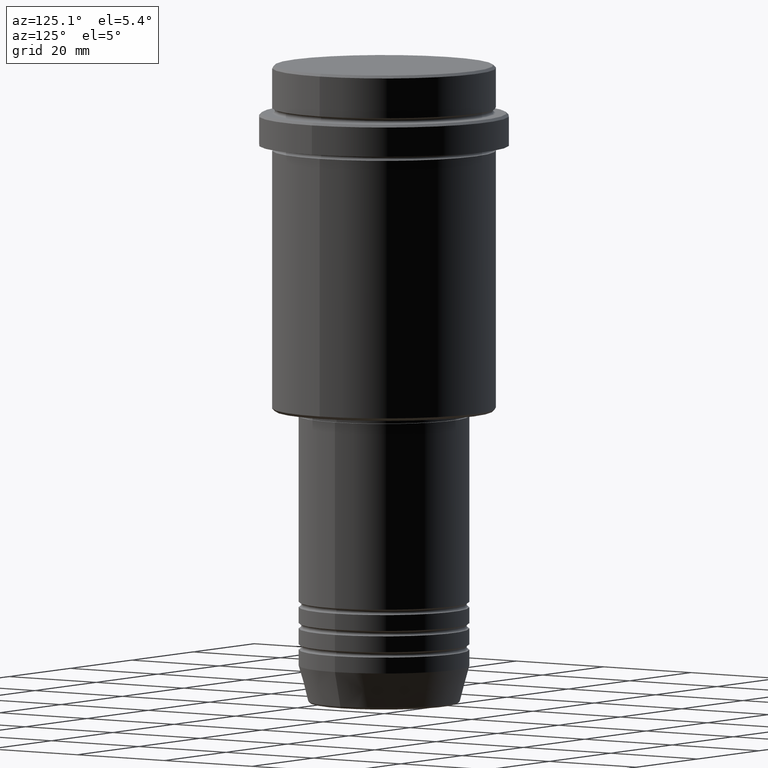
[diagram: clean part render]
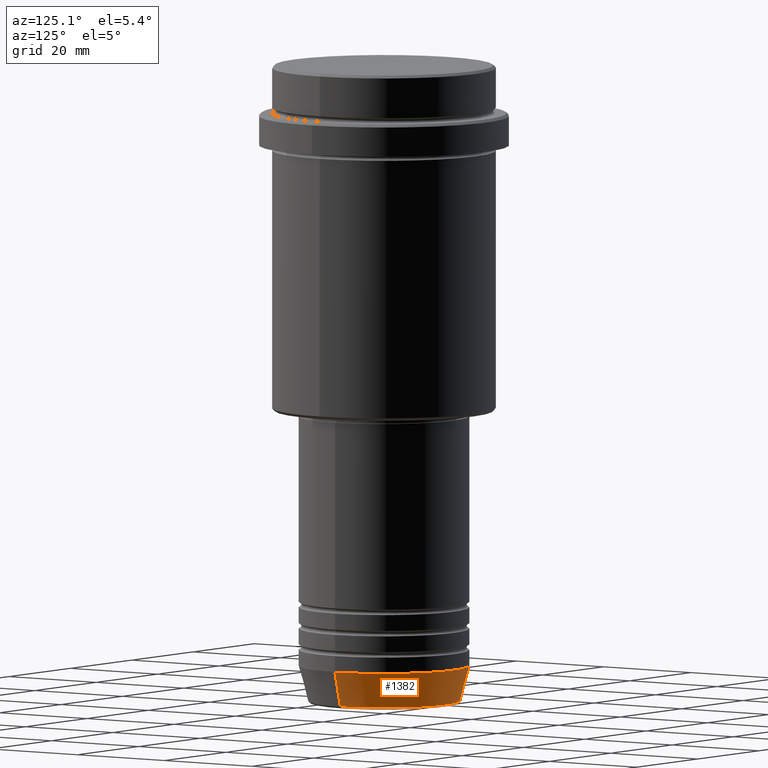
[diagram: same view with one face highlighted and labeled with its STEP entity id]
A machine part, auxiliary view. The second image highlights one B-rep face of the part: STEP entity #1382.
In plain terms, the highlighted conical surface has half-angle 15 deg.
Its self-contained STEP definition (entity closure, byte-faithful):
#20 = CARTESIAN_POINT ( 'NONE',  ( 16.00000000000000000, 0.000000000000000000, -113.0000000000000000 ) ) ;
#36 = VECTOR ( 'NONE', #109, 1000.000000000000000 ) ;
#62 = CARTESIAN_POINT ( 'NONE',  ( 0.000000000000000000, 0.000000000000000000, -119.6294095225512564 ) ) ;
#75 = DIRECTION ( 'NONE',  ( 0.2588190451025213501, 0.000000000000000000, 0.9659258262890680902 ) ) ;
#103 = VERTEX_POINT ( 'NONE', #1327 ) ;
#109 = DIRECTION ( 'NONE',  ( -0.2588190451025213501, 3.169619151431772337E-17, 0.9659258262890680902 ) ) ;
#180 = LINE ( 'NONE', #1055, #189 ) ;
#186 = CARTESIAN_POINT ( 'NONE',  ( 0.000000000000000000, 0.000000000000000000, -113.0000000000000000 ) ) ;
#189 = VECTOR ( 'NONE', #75, 1000.000000000000000 ) ;
#203 = CARTESIAN_POINT ( 'NONE',  ( -16.00000000000000000, 1.959434878635765131E-15, -113.0000000000000000 ) ) ;
#220 = CONICAL_SURFACE ( 'NONE', #394, 16.00000000000000000, 0.2617993877991500740 ) ;
#225 = EDGE_LOOP ( 'NONE', ( #735, #327, #741, #501 ) ) ;
#227 = EDGE_CURVE ( 'NONE', #1232, #103, #687, .T. ) ;
#232 = DIRECTION ( 'NONE',  ( 1.000000000000000000, 0.000000000000000000, 0.000000000000000000 ) ) ;
#240 = LINE ( 'NONE', #1313, #36 ) ;
#327 = ORIENTED_EDGE ( 'NONE', *, *, #758, .T. ) ;
#394 = AXIS2_PLACEMENT_3D ( 'NONE', #700, #1269, #949 ) ;
#437 = CIRCLE ( 'NONE', #853, 16.00000000000000000 ) ;
#484 = DIRECTION ( 'NONE',  ( -0.000000000000000000, -0.000000000000000000, 1.000000000000000000 ) ) ;
#501 = ORIENTED_EDGE ( 'NONE', *, *, #666, .F. ) ;
#622 = DIRECTION ( 'NONE',  ( -0.000000000000000000, -0.000000000000000000, 1.000000000000000000 ) ) ;
#638 = VERTEX_POINT ( 'NONE', #203 ) ;
#666 = EDGE_CURVE ( 'NONE', #1232, #1158, #180, .T. ) ;
#684 = EDGE_CURVE ( 'NONE', #1158, #638, #437, .T. ) ;
#687 = CIRCLE ( 'NONE', #1124, 14.22365507213718949 ) ;
#700 = CARTESIAN_POINT ( 'NONE',  ( 0.000000000000000000, 0.000000000000000000, -113.0000000000000000 ) ) ;
#735 = ORIENTED_EDGE ( 'NONE', *, *, #227, .T. ) ;
#741 = ORIENTED_EDGE ( 'NONE', *, *, #684, .F. ) ;
#758 = EDGE_CURVE ( 'NONE', #103, #638, #240, .T. ) ;
#798 = CARTESIAN_POINT ( 'NONE',  ( 14.22365507213718949, 0.000000000000000000, -119.6294095225512564 ) ) ;
#815 = FACE_OUTER_BOUND ( 'NONE', #225, .T. ) ;
#853 = AXIS2_PLACEMENT_3D ( 'NONE', #186, #622, #232 ) ;
#949 = DIRECTION ( 'NONE',  ( 1.000000000000000000, 0.000000000000000000, 0.000000000000000000 ) ) ;
#1055 = CARTESIAN_POINT ( 'NONE',  ( 16.00000000000000000, 0.000000000000000000, -113.0000000000000000 ) ) ;
#1124 = AXIS2_PLACEMENT_3D ( 'NONE', #62, #484, #1353 ) ;
#1158 = VERTEX_POINT ( 'NONE', #20 ) ;
#1232 = VERTEX_POINT ( 'NONE', #798 ) ;
#1269 = DIRECTION ( 'NONE',  ( -0.000000000000000000, -0.000000000000000000, 1.000000000000000000 ) ) ;
#1313 = CARTESIAN_POINT ( 'NONE',  ( -16.00000000000000000, 1.959434878635765131E-15, -113.0000000000000000 ) ) ;
#1327 = CARTESIAN_POINT ( 'NONE',  ( -14.22365507213718949, 1.850665122131323731E-15, -119.6294095225512564 ) ) ;
#1353 = DIRECTION ( 'NONE',  ( 1.000000000000000000, 0.000000000000000000, 0.000000000000000000 ) ) ;
#1382 = ADVANCED_FACE ( 'NONE', ( #815 ), #220, .T. ) ;